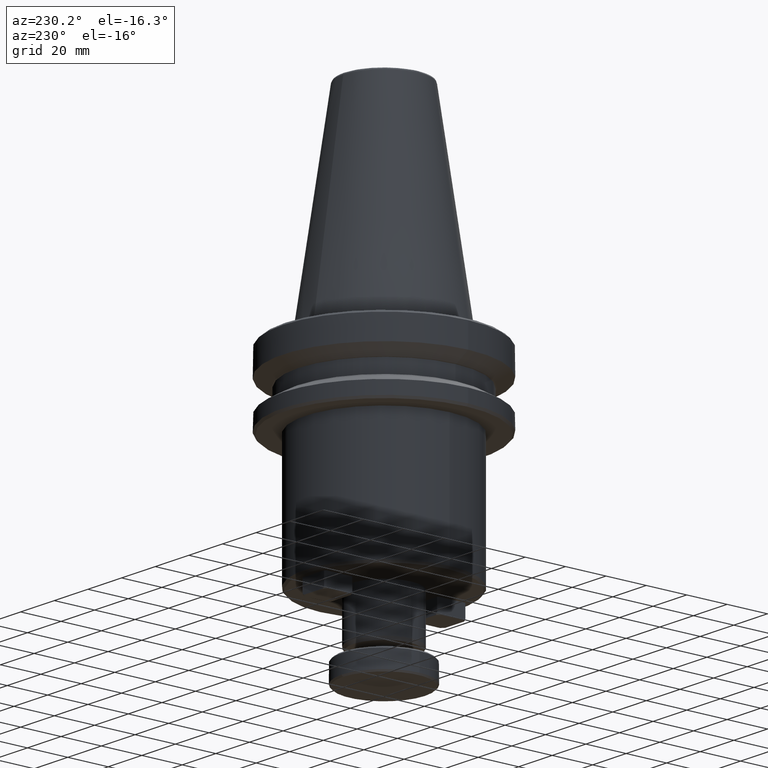
[diagram: clean part render]
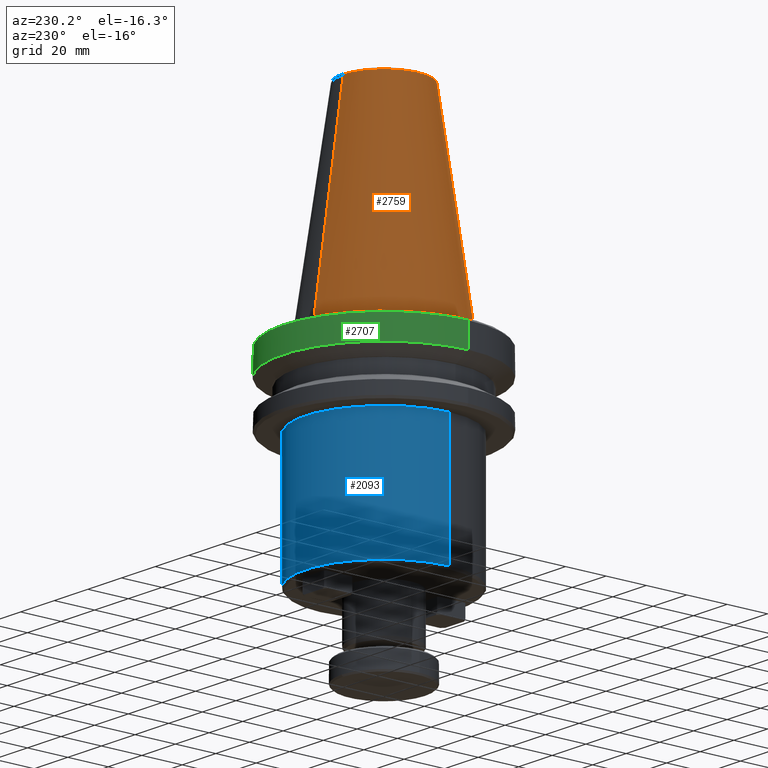
[diagram: same view with three faces highlighted in distinct colors, each labeled with its STEP entity id]
A machine part, auxiliary view with three faces highlighted in distinct colors.
Their STEP definitions:

[orange] entity #2759 — the highlighted conical surface has half-angle 8.297 deg.
#129 = VERTEX_POINT ( 'NONE', #2452 ) ;
#151 = AXIS2_PLACEMENT_3D ( 'NONE', #1649, #1680, #1366 ) ;
#169 = EDGE_CURVE ( 'NONE', #2652, #1868, #780, .T. ) ;
#225 = EDGE_CURVE ( 'NONE', #129, #2515, #2480, .T. ) ;
#329 = LINE ( 'NONE', #1295, #2643 ) ;
#477 = EDGE_CURVE ( 'NONE', #129, #1862, #1777, .T. ) ;
#481 = AXIS2_PLACEMENT_3D ( 'NONE', #2626, #2612, #2634 ) ;
#594 = AXIS2_PLACEMENT_3D ( 'NONE', #1959, #1958, #1956 ) ;
#622 = EDGE_CURVE ( 'NONE', #1888, #2652, #329, .T. ) ;
#713 = CIRCLE ( 'NONE', #151, 34.92499999999999700 ) ;
#737 = ORIENTED_EDGE ( 'NONE', *, *, #169, .T. ) ;
#780 = CIRCLE ( 'NONE', #481, 34.92499999999999700 ) ;
#876 = ORIENTED_EDGE ( 'NONE', *, *, #225, .T. ) ;
#982 = DIRECTION ( 'NONE',  ( 0.0000000000000000000, 1.000000000000000000, 4.411578970679424000E-032 ) ) ;
#1130 = CONICAL_SURFACE ( 'NONE', #2748, 34.92499999999999700, 0.1448138465474120300 ) ;
#1140 = CARTESIAN_POINT ( 'NONE',  ( -20.20381605152244500, 2.474253865805887700E-015, 100.9443082272672700 ) ) ;
#1153 = EDGE_LOOP ( 'NONE', ( #2669, #876, #1391, #1477, #737, #1932 ) ) ;
#1196 = FACE_OUTER_BOUND ( 'NONE', #1153, .T. ) ;
#1288 = DIRECTION ( 'NONE',  ( 0.0000000000000000000, 0.1443082272673000500, -0.9895327864921754600 ) ) ;
#1295 = CARTESIAN_POINT ( 'NONE',  ( 0.0000000000000000000, 34.92499999999999700, -1.235024670767087400E-014 ) ) ;
#1366 = DIRECTION ( 'NONE',  ( -1.000000000000000000, 0.0000000000000000000, -3.611427007686981100E-016 ) ) ;
#1370 = CARTESIAN_POINT ( 'NONE',  ( 0.0000000000000000000, 0.0000000000000000000, 100.9443082272672700 ) ) ;
#1391 = ORIENTED_EDGE ( 'NONE', *, *, #2677, .T. ) ;
#1450 = DIRECTION ( 'NONE',  ( 1.767266086135278000E-017, -0.1443082272673000500, -0.9895327864921754600 ) ) ;
#1457 = CARTESIAN_POINT ( 'NONE',  ( 4.277078946022130900E-015, -34.92499999999999700, -1.235024670767087800E-014 ) ) ;
#1477 = ORIENTED_EDGE ( 'NONE', *, *, #622, .T. ) ;
#1505 = DIRECTION ( 'NONE',  ( 0.0000000000000000000, 2.205789485339712300E-032, -1.000000000000000000 ) ) ;
#1625 = DIRECTION ( 'NONE',  ( -1.000000000000000000, 0.0000000000000000000, 0.0000000000000000000 ) ) ;
#1649 = CARTESIAN_POINT ( 'NONE',  ( 0.0000000000000000000, 0.0000000000000000000, 0.0000000000000000000 ) ) ;
#1680 = DIRECTION ( 'NONE',  ( -0.0000000000000000000, -0.0000000000000000000, 1.000000000000000000 ) ) ;
#1777 = LINE ( 'NONE', #1457, #2564 ) ;
#1795 = CARTESIAN_POINT ( 'NONE',  ( 4.277078946022130900E-015, -34.92499999999999700, 0.0000000000000000000 ) ) ;
#1862 = VERTEX_POINT ( 'NONE', #1795 ) ;
#1868 = VERTEX_POINT ( 'NONE', #2701 ) ;
#1881 = CARTESIAN_POINT ( 'NONE',  ( 0.0000000000000000000, 34.92499999999999700, 0.0000000000000000000 ) ) ;
#1888 = VERTEX_POINT ( 'NONE', #2056 ) ;
#1932 = ORIENTED_EDGE ( 'NONE', *, *, #2734, .T. ) ;
#1953 = AXIS2_PLACEMENT_3D ( 'NONE', #1370, #2686, #1625 ) ;
#1956 = DIRECTION ( 'NONE',  ( -1.000000000000000000, 0.0000000000000000000, 0.0000000000000000000 ) ) ;
#1958 = DIRECTION ( 'NONE',  ( 0.0000000000000000000, 0.0000000000000000000, -1.000000000000000000 ) ) ;
#1959 = CARTESIAN_POINT ( 'NONE',  ( 0.0000000000000000000, 0.0000000000000000000, 100.9443082272672700 ) ) ;
#2056 = CARTESIAN_POINT ( 'NONE',  ( 0.0000000000000000000, 20.20381605152244500, 100.9443082272672700 ) ) ;
#2452 = CARTESIAN_POINT ( 'NONE',  ( 3.375666405914009500E-015, -20.20381605152244500, 100.9443082272672700 ) ) ;
#2480 = CIRCLE ( 'NONE', #594, 20.20381605152244500 ) ;
#2515 = VERTEX_POINT ( 'NONE', #1140 ) ;
#2564 = VECTOR ( 'NONE', #1450, 1000.000000000000000 ) ;
#2609 = CARTESIAN_POINT ( 'NONE',  ( 0.0000000000000000000, 0.0000000000000000000, -1.235024670767087600E-014 ) ) ;
#2612 = DIRECTION ( 'NONE',  ( -0.0000000000000000000, -0.0000000000000000000, 1.000000000000000000 ) ) ;
#2626 = CARTESIAN_POINT ( 'NONE',  ( 0.0000000000000000000, 0.0000000000000000000, 0.0000000000000000000 ) ) ;
#2634 = DIRECTION ( 'NONE',  ( -1.000000000000000000, -8.881784197001252300E-016, -3.611427007686981100E-016 ) ) ;
#2643 = VECTOR ( 'NONE', #1288, 1000.000000000000000 ) ;
#2652 = VERTEX_POINT ( 'NONE', #1881 ) ;
#2669 = ORIENTED_EDGE ( 'NONE', *, *, #477, .F. ) ;
#2677 = EDGE_CURVE ( 'NONE', #2515, #1888, #2756, .T. ) ;
#2686 = DIRECTION ( 'NONE',  ( 0.0000000000000000000, 0.0000000000000000000, -1.000000000000000000 ) ) ;
#2701 = CARTESIAN_POINT ( 'NONE',  ( -34.92499999999999700, 4.277078946022130900E-015, 0.0000000000000000000 ) ) ;
#2734 = EDGE_CURVE ( 'NONE', #1868, #1862, #713, .T. ) ;
#2748 = AXIS2_PLACEMENT_3D ( 'NONE', #2609, #1505, #982 ) ;
#2756 = CIRCLE ( 'NONE', #1953, 20.20381605152244500 ) ;
#2759 = ADVANCED_FACE ( 'NONE', ( #1196 ), #1130, .T. ) ;

[blue] entity #2093 — the highlighted cylindrical surface (partial cylindrical patch) has radius 39 mm, axis along (0, 0, 1).
#8 = VERTEX_POINT ( 'NONE', #2376 ) ;
#105 = EDGE_CURVE ( 'NONE', #2541, #2381, #2158, .T. ) ;
#150 = CIRCLE ( 'NONE', #2213, 38.99999999999999300 ) ;
#272 = ORIENTED_EDGE ( 'NONE', *, *, #2181, .F. ) ;
#316 = CARTESIAN_POINT ( 'NONE',  ( -38.99999999999999300, 4.776122516674677100E-015, -37.99999999999999300 ) ) ;
#785 = LINE ( 'NONE', #2671, #2085 ) ;
#889 = ORIENTED_EDGE ( 'NONE', *, *, #105, .T. ) ;
#979 = DIRECTION ( 'NONE',  ( 1.000000000000000000, 0.0000000000000000000, 0.0000000000000000000 ) ) ;
#993 = DIRECTION ( 'NONE',  ( -0.0000000000000000000, -0.0000000000000000000, -1.000000000000000000 ) ) ;
#1001 = CARTESIAN_POINT ( 'NONE',  ( 0.0000000000000000000, 0.0000000000000000000, -37.99999999999999300 ) ) ;
#1009 = CYLINDRICAL_SURFACE ( 'NONE', #1919, 38.99999999999999300 ) ;
#1102 = AXIS2_PLACEMENT_3D ( 'NONE', #2228, #2226, #2223 ) ;
#1105 = CARTESIAN_POINT ( 'NONE',  ( 39.00000000000000700, 0.0000000000000000000, -98.99999999999998600 ) ) ;
#1539 = VERTEX_POINT ( 'NONE', #316 ) ;
#1590 = CARTESIAN_POINT ( 'NONE',  ( -39.00000000000000700, 4.776122516674678700E-015, -98.99999999999998600 ) ) ;
#1651 = CARTESIAN_POINT ( 'NONE',  ( 38.99999999999999300, 0.0000000000000000000, 118.5507178974871000 ) ) ;
#1730 = ORIENTED_EDGE ( 'NONE', *, *, #2558, .T. ) ;
#1835 = DIRECTION ( 'NONE',  ( 0.0000000000000000000, 0.0000000000000000000, 1.000000000000000000 ) ) ;
#1919 = AXIS2_PLACEMENT_3D ( 'NONE', #2179, #2513, #2176 ) ;
#2071 = DIRECTION ( 'NONE',  ( 0.0000000000000000000, 0.0000000000000000000, 1.000000000000000000 ) ) ;
#2085 = VECTOR ( 'NONE', #2071, 1000.000000000000000 ) ;
#2093 = ADVANCED_FACE ( 'NONE', ( #2346 ), #1009, .T. ) ;
#2158 = CIRCLE ( 'NONE', #1102, 38.99999999999999300 ) ;
#2176 = DIRECTION ( 'NONE',  ( 1.000000000000000000, 0.0000000000000000000, 0.0000000000000000000 ) ) ;
#2179 = CARTESIAN_POINT ( 'NONE',  ( 0.0000000000000000000, 0.0000000000000000000, 118.5507178974871000 ) ) ;
#2181 = EDGE_CURVE ( 'NONE', #2541, #8, #2739, .T. ) ;
#2205 = VECTOR ( 'NONE', #1835, 1000.000000000000000 ) ;
#2213 = AXIS2_PLACEMENT_3D ( 'NONE', #1001, #993, #979 ) ;
#2223 = DIRECTION ( 'NONE',  ( 1.000000000000000000, 0.0000000000000000000, 0.0000000000000000000 ) ) ;
#2226 = DIRECTION ( 'NONE',  ( 0.0000000000000000000, 0.0000000000000000000, 1.000000000000000000 ) ) ;
#2228 = CARTESIAN_POINT ( 'NONE',  ( 0.0000000000000000000, 0.0000000000000000000, -98.99999999999998600 ) ) ;
#2346 = FACE_OUTER_BOUND ( 'NONE', #2471, .T. ) ;
#2376 = CARTESIAN_POINT ( 'NONE',  ( 38.99999999999999300, 0.0000000000000000000, -37.99999999999999300 ) ) ;
#2381 = VERTEX_POINT ( 'NONE', #1590 ) ;
#2471 = EDGE_LOOP ( 'NONE', ( #889, #2681, #1730, #272 ) ) ;
#2513 = DIRECTION ( 'NONE',  ( 0.0000000000000000000, 0.0000000000000000000, 1.000000000000000000 ) ) ;
#2541 = VERTEX_POINT ( 'NONE', #1105 ) ;
#2558 = EDGE_CURVE ( 'NONE', #1539, #8, #150, .T. ) ;
#2671 = CARTESIAN_POINT ( 'NONE',  ( -38.99999999999999300, 4.776122516674677100E-015, 118.5507178974871000 ) ) ;
#2681 = ORIENTED_EDGE ( 'NONE', *, *, #2717, .T. ) ;
#2717 = EDGE_CURVE ( 'NONE', #2381, #1539, #785, .T. ) ;
#2739 = LINE ( 'NONE', #1651, #2205 ) ;

[green] entity #2707 — the highlighted cylindrical surface (partial cylindrical patch) has radius 50 mm, axis along (0, 0, 1).
#212 = ORIENTED_EDGE ( 'NONE', *, *, #402, .T. ) ;
#265 = AXIS2_PLACEMENT_3D ( 'NONE', #2137, #2384, #1433 ) ;
#297 = CARTESIAN_POINT ( 'NONE',  ( -50.00000000000000000, 6.123233995736766100E-015, -3.999999999999989800 ) ) ;
#376 = EDGE_CURVE ( 'NONE', #399, #2163, #811, .T. ) ;
#399 = VERTEX_POINT ( 'NONE', #1642 ) ;
#401 = FACE_OUTER_BOUND ( 'NONE', #1892, .T. ) ;
#402 = EDGE_CURVE ( 'NONE', #399, #668, #1319, .T. ) ;
#414 = EDGE_CURVE ( 'NONE', #546, #1571, #679, .T. ) ;
#490 = DIRECTION ( 'NONE',  ( 0.0000000000000000000, 0.0000000000000000000, 1.000000000000000000 ) ) ;
#493 = CARTESIAN_POINT ( 'NONE',  ( -50.00000000000000000, 6.123233995736766100E-015, 124.5046326327850600 ) ) ;
#546 = VERTEX_POINT ( 'NONE', #1396 ) ;
#550 = DIRECTION ( 'NONE',  ( -1.000000000000000000, 0.0000000000000000000, -3.469446951953614200E-017 ) ) ;
#552 = DIRECTION ( 'NONE',  ( -0.0000000000000000000, -0.0000000000000000000, 1.000000000000000000 ) ) ;
#553 = CARTESIAN_POINT ( 'NONE',  ( 0.0000000000000000000, 0.0000000000000000000, -3.999999999999989800 ) ) ;
#668 = VERTEX_POINT ( 'NONE', #1203 ) ;
#679 = CIRCLE ( 'NONE', #1285, 50.00000000000000000 ) ;
#811 = LINE ( 'NONE', #1683, #2675 ) ;
#844 = CYLINDRICAL_SURFACE ( 'NONE', #265, 50.00000000000000000 ) ;
#944 = ORIENTED_EDGE ( 'NONE', *, *, #1363, .T. ) ;
#989 = AXIS2_PLACEMENT_3D ( 'NONE', #1600, #1599, #1594 ) ;
#1050 = ORIENTED_EDGE ( 'NONE', *, *, #1259, .F. ) ;
#1203 = CARTESIAN_POINT ( 'NONE',  ( -50.00000000000000000, 6.123233995736766100E-015, -15.70022000322675400 ) ) ;
#1240 = ORIENTED_EDGE ( 'NONE', *, *, #414, .F. ) ;
#1259 = EDGE_CURVE ( 'NONE', #2163, #546, #2562, .T. ) ;
#1285 = AXIS2_PLACEMENT_3D ( 'NONE', #1583, #1579, #1577 ) ;
#1319 = CIRCLE ( 'NONE', #989, 50.00000000000000000 ) ;
#1363 = EDGE_CURVE ( 'NONE', #668, #1571, #2505, .T. ) ;
#1396 = CARTESIAN_POINT ( 'NONE',  ( 0.0000000000000000000, 50.00000000000000000, -3.999999999999989800 ) ) ;
#1433 = DIRECTION ( 'NONE',  ( 1.000000000000000000, 0.0000000000000000000, 0.0000000000000000000 ) ) ;
#1571 = VERTEX_POINT ( 'NONE', #297 ) ;
#1577 = DIRECTION ( 'NONE',  ( -1.000000000000000000, -8.881784197001252300E-016, -3.469446951953614200E-017 ) ) ;
#1579 = DIRECTION ( 'NONE',  ( -0.0000000000000000000, -0.0000000000000000000, 1.000000000000000000 ) ) ;
#1583 = CARTESIAN_POINT ( 'NONE',  ( 0.0000000000000000000, 0.0000000000000000000, -3.999999999999989800 ) ) ;
#1594 = DIRECTION ( 'NONE',  ( 1.000000000000000000, 0.0000000000000000000, 0.0000000000000000000 ) ) ;
#1599 = DIRECTION ( 'NONE',  ( 0.0000000000000000000, 0.0000000000000000000, 1.000000000000000000 ) ) ;
#1600 = CARTESIAN_POINT ( 'NONE',  ( 0.0000000000000000000, 0.0000000000000000000, -15.70022000322675400 ) ) ;
#1642 = CARTESIAN_POINT ( 'NONE',  ( 50.00000000000000000, 0.0000000000000000000, -15.70022000322675400 ) ) ;
#1683 = CARTESIAN_POINT ( 'NONE',  ( 50.00000000000000000, 0.0000000000000000000, 124.5046326327850600 ) ) ;
#1708 = DIRECTION ( 'NONE',  ( 0.0000000000000000000, 0.0000000000000000000, 1.000000000000000000 ) ) ;
#1769 = VECTOR ( 'NONE', #490, 1000.000000000000000 ) ;
#1892 = EDGE_LOOP ( 'NONE', ( #212, #944, #1240, #1050, #2479 ) ) ;
#2137 = CARTESIAN_POINT ( 'NONE',  ( 0.0000000000000000000, 0.0000000000000000000, 124.5046326327850600 ) ) ;
#2146 = AXIS2_PLACEMENT_3D ( 'NONE', #553, #552, #550 ) ;
#2163 = VERTEX_POINT ( 'NONE', #2531 ) ;
#2384 = DIRECTION ( 'NONE',  ( 0.0000000000000000000, 0.0000000000000000000, 1.000000000000000000 ) ) ;
#2479 = ORIENTED_EDGE ( 'NONE', *, *, #376, .F. ) ;
#2505 = LINE ( 'NONE', #493, #1769 ) ;
#2531 = CARTESIAN_POINT ( 'NONE',  ( 50.00000000000000000, 0.0000000000000000000, -3.999999999999989800 ) ) ;
#2562 = CIRCLE ( 'NONE', #2146, 50.00000000000000000 ) ;
#2675 = VECTOR ( 'NONE', #1708, 1000.000000000000000 ) ;
#2707 = ADVANCED_FACE ( 'NONE', ( #401 ), #844, .T. ) ;